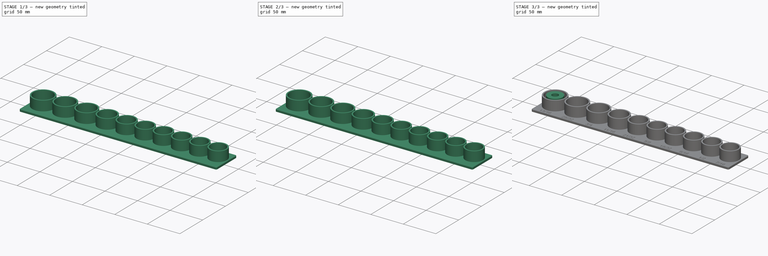
[diagram: build sequence overview — one tinted view per stage of 3, left to right]
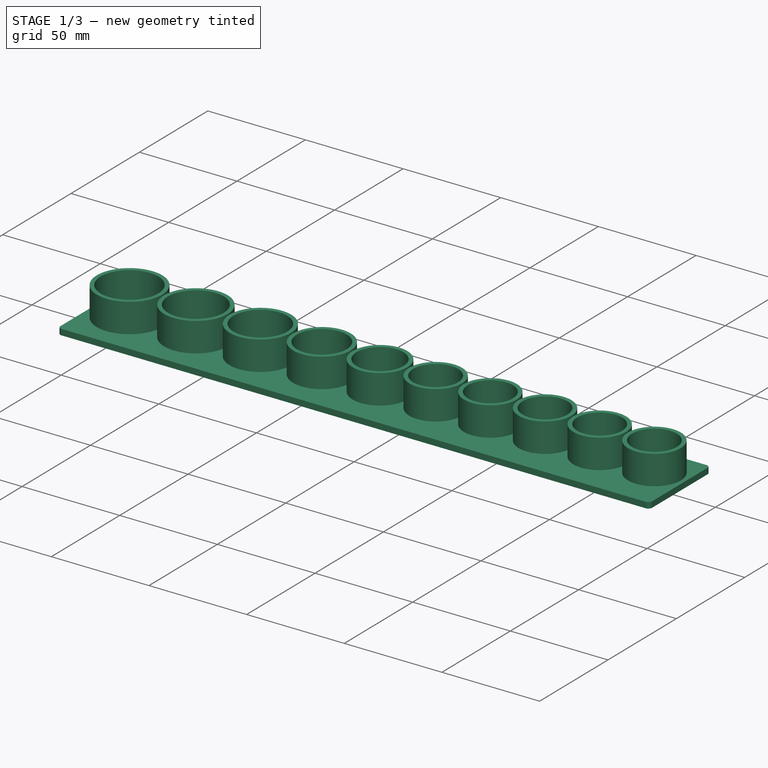
[diagram: stage 1 of 3 — iso view after this stage's code; geometry added in this stage tinted green]
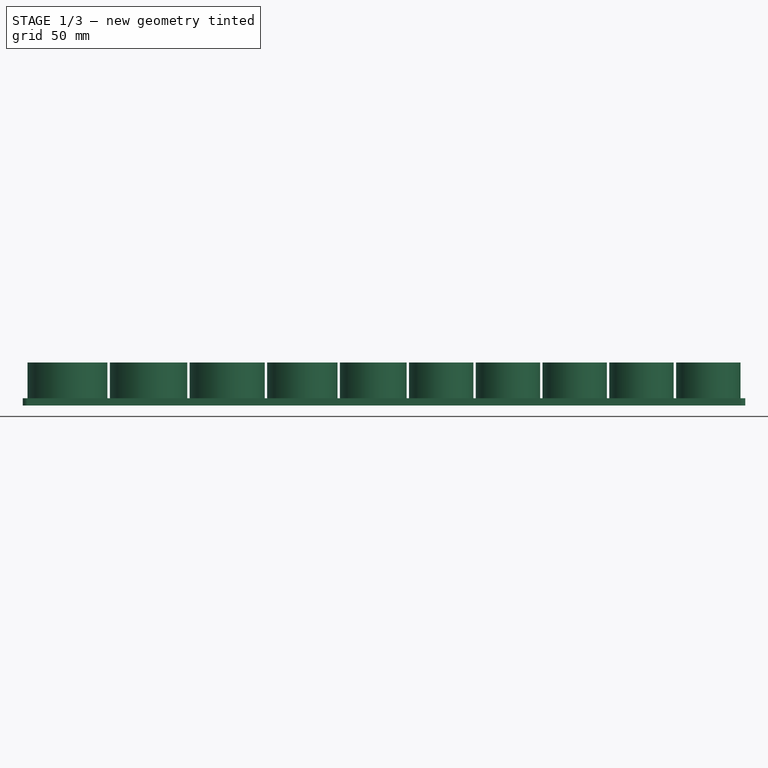
[diagram: stage 1 of 3 — front view after this stage's code; geometry added in this stage tinted green]
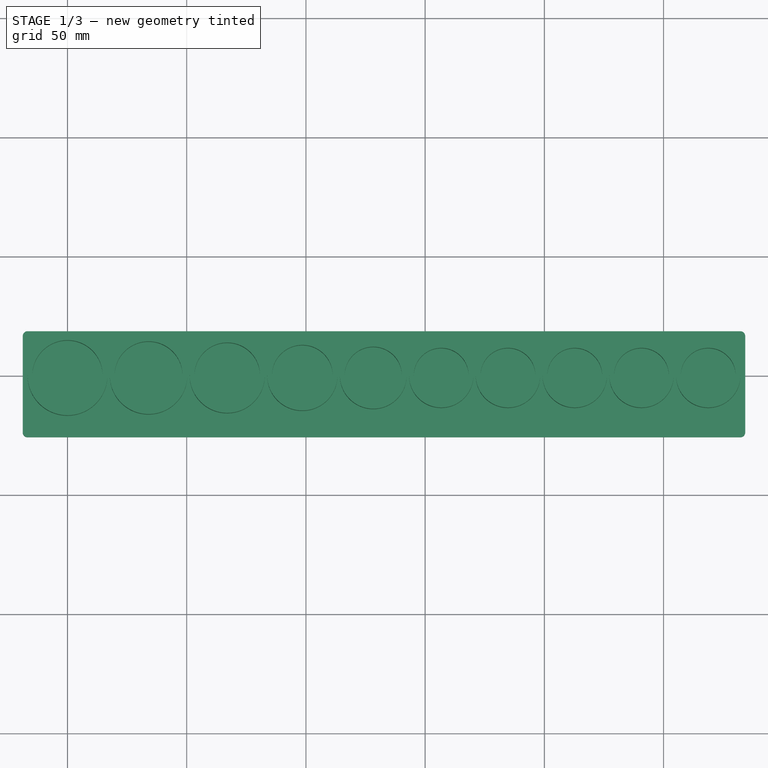
[diagram: stage 1 of 3 — top view after this stage's code; geometry added in this stage tinted green]
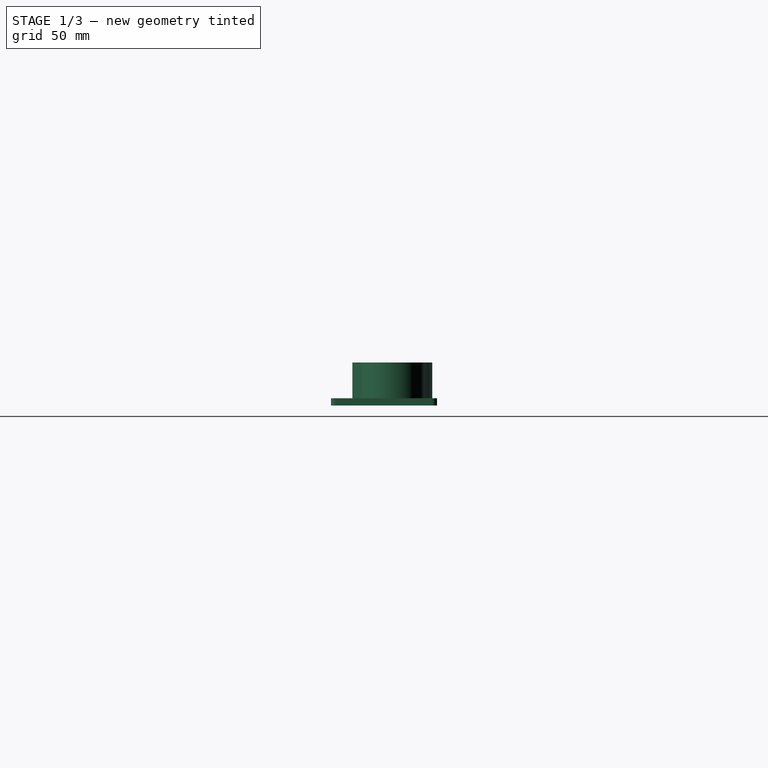
[diagram: stage 1 of 3 — right view after this stage's code; geometry added in this stage tinted green]
FCSTD DOCUMENT  (FreeCAD 0.22R38314 (Git))
Label: new socket
License: All rights reserved
LicenseURL: http://en.wikipedia.org/wiki/All_rights_reserved
objects: Part::Extrusion×4, Sketcher::SketchObject×2, Part::FeaturePython×2, Spreadsheet::Sheet×1, Part::Part2DObjectPython×1, Part::MultiFuse×1, Part::Cut×1
note: 11 computed .brp shape members not serialized (recipe doc carries the construction recipe); baked Part::Feature solids carry a one-line shape summary decoded from their .brp

FEATURE [Part::Extrusion] Extrude003
  Base = -> Sketch001
  Dir = (0,0,1)
  DirMode = 2
  FaceMakerClass = Part::FaceMakerBullseye
  FaceMakerMode = 3
  LengthFwd = 3
  LengthRev = 0
  Reversed = true
  Solid = true
  Symmetric = false
  expr: LengthFwd = <<q>>.base_thickness
FEATURE [Part::Extrusion] Extrude004
  Base = -> ParaSeries
  Dir = (0,0,1)
  DirMode = 2
  FaceMakerClass = Part::FaceMakerBullseye
  FaceMakerMode = 3
  LengthFwd = 15
  LengthRev = 0
  Solid = true
  Symmetric = false
  expr: LengthFwd = <<q>>.socket_height
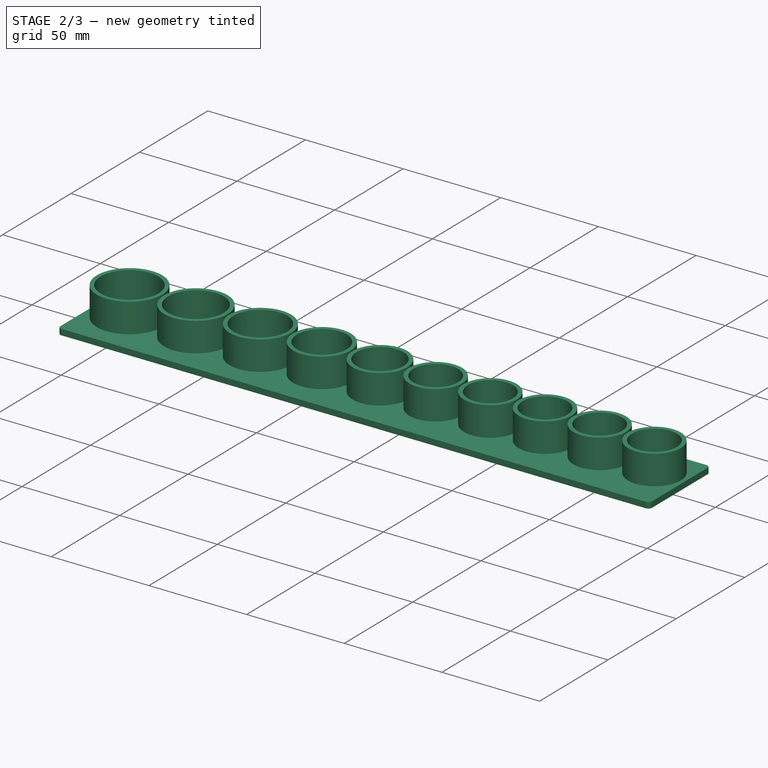
[diagram: stage 2 of 3 — iso view after this stage's code; geometry added in this stage tinted green]
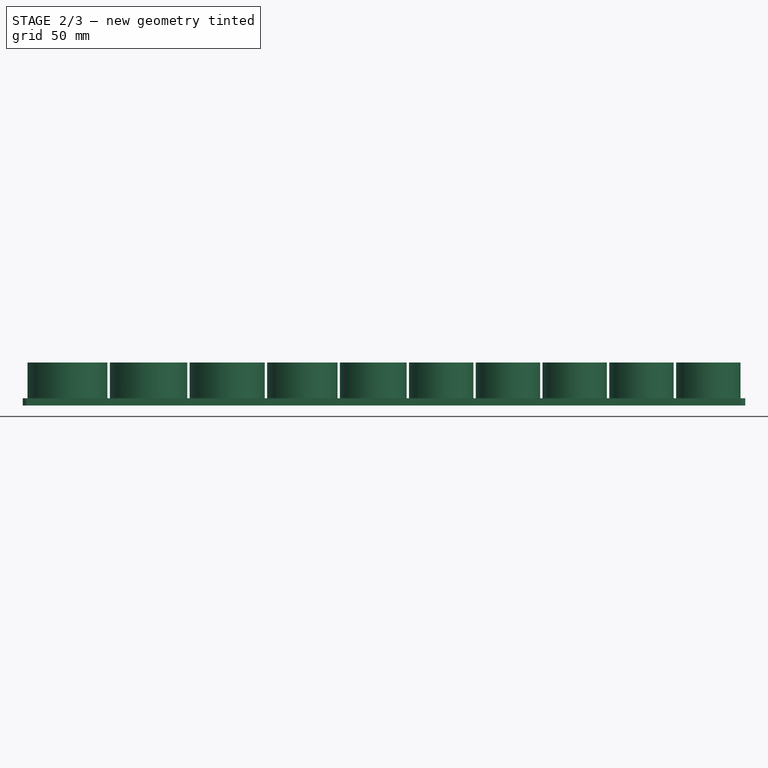
[diagram: stage 2 of 3 — front view after this stage's code; geometry added in this stage tinted green]
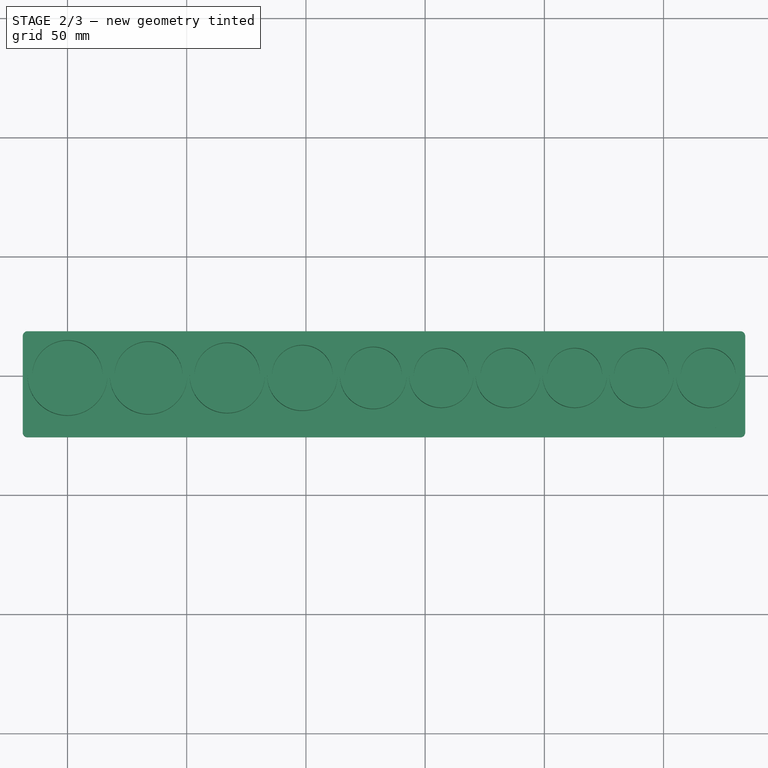
[diagram: stage 2 of 3 — top view after this stage's code; geometry added in this stage tinted green]
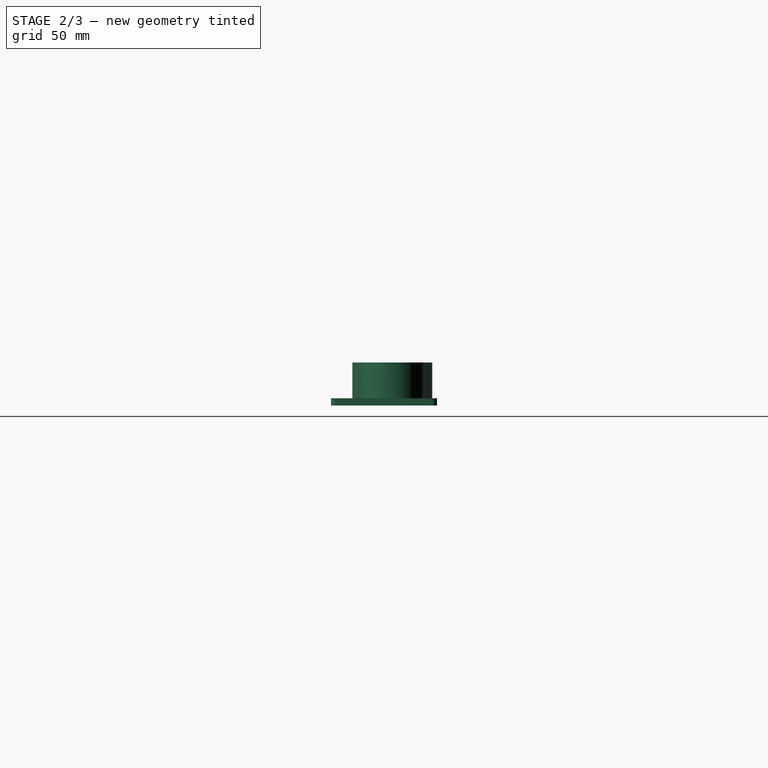
[diagram: stage 2 of 3 — right view after this stage's code; geometry added in this stage tinted green]
FEATURE [Sketcher::SketchObject] Sketch001
  FullyConstrained = true
  expr: Constraints[27] = <<q>>.base_corner_radius
  expr: Constraints[4] = <<q>>.base_left_xy
  expr: Constraints[5] = <<q>>.base_left_xy
  expr: Constraints[6] = <<q>>.base_height
  expr: Constraints[7] = <<q>>.base_length
  sketch-geometry (12):
    g0: LineSegment StartX=-18.75 StartY=16.75 StartZ=0 EndX=-18.75 EndY=-23.75 EndZ=0
    g1: LineSegment StartX=-16.75 StartY=-25.75 StartZ=0 EndX=282.25 EndY=-25.75 EndZ=0
    g2: LineSegment StartX=284.25 StartY=-23.75 StartZ=0 EndX=284.25 EndY=16.75 EndZ=0
    g3: LineSegment StartX=282.25 StartY=18.75 StartZ=0 EndX=-16.75 EndY=18.75 EndZ=0
    g4: ArcOfCircle CenterX=-16.75 CenterY=16.75 CenterZ=0 NormalX=0 NormalY=0 NormalZ=1 AngleXU=0 Radius=2 StartAngle=1.5708 EndAngle=3.14159
    g5: GeomPoint X=-18.75 Y=18.75 Z=0
    g6: ArcOfCircle CenterX=-16.75 CenterY=-23.75 CenterZ=0 NormalX=0 NormalY=0 NormalZ=1 AngleXU=0 Radius=2 StartAngle=3.14159 EndAngle=4.71239
    g7: GeomPoint X=-18.75 Y=-25.75 Z=0
    g8: ArcOfCircle CenterX=282.25 CenterY=-23.75 CenterZ=0 NormalX=0 NormalY=0 NormalZ=1 AngleXU=0 Radius=2 StartAngle=4.71239 EndAngle=6.28319
    g9: GeomPoint X=284.25 Y=-25.75 Z=0
    g10: ArcOfCircle CenterX=282.25 CenterY=16.75 CenterZ=0 NormalX=0 NormalY=0 NormalZ=1 AngleXU=0 Radius=2 StartAngle=-1.5037e-12 EndAngle=1.5708
    g11: GeomPoint X=284.25 Y=18.75 Z=0
  constraints (28):
    c: Vertical(g0)
    c: Vertical(g2)
    c: Horizontal(g1)
    c: Horizontal(g3)
    c: DistanceX(g5,g-1) = 18.75
    c: DistanceY(g-1,g5) = 18.75
    c: DistanceY(g7,g5) = 44.5
    c: DistanceX(g7,g9) = 303
    c: PointOnObject(g5,g3)
    c: PointOnObject(g5,g0)
    c: Tangent(g3,g4) = -1.5708
    c: Tangent(g0,g4) = -1.5708
    c: PointOnObject(g7,g0)
    c: PointOnObject(g7,g1)
    c: Tangent(g0,g6) = -1.5708
    c: Tangent(g1,g6) = -1.5708
    c: PointOnObject(g9,g1)
    c: PointOnObject(g9,g2)
    c: Tangent(g1,g8) = -1.5708
    c: Tangent(g2,g8) = -1.5708
    c: PointOnObject(g11,g2)
    c: PointOnObject(g11,g3)
    c: Tangent(g2,g10) = -1.5708
    c: Tangent(g3,g10) = -1.5708
    c: Equal(g4,g6)
    c: Equal(g4,g8)
    c: Equal(g4,g10)
    c: Radius(g4) = 2
FEATURE [Part::Part2DObjectPython] ShapeString  # Draft 2D object (typed FeaturePython)
  FontFile = /System/Library/Fonts/Supplemental/Arial.ttf
  Fuse = false
  Justification = 1
  JustificationReference = 0
  KeepLeftMargin = false
  MakeFace = true
  ObliqueAngle = 0
  Placement = pos=(0,-18.75,0) rot=(0,0,1;0rad)
  ScaleToSize = true
  Size = 5
  String = 1-1/4
  Tracking = 0
  expr: .Placement.Base.y = <<q>>.text_y_offset
  expr: Size = <<q>>.text_height
FEATURE [Part::Extrusion] Extrude002
  Base = -> ShapeString
  Dir = (0,0,1)
  DirMode = 2
  FaceMakerClass = Part::FaceMakerBullseye
  FaceMakerMode = 3
  LengthFwd = 0.5
  LengthRev = 0
  Reversed = true
  Solid = false
  Symmetric = false
  expr: LengthFwd = <<q>>.text_depth
FEATURE [Part::FeaturePython] ParaSeries001  # WARN: FeaturePython — macro-defined, semantics opaque (R4)
  Alignment = 0
  CellStart = E2
  Count = 7
  DistributionLaw = 0
  EndInclusive = true
  ExposePlacement = false
  GeneratorMode = 0
  MarkerShape = 1
  MarkerSize = 0
  NumElements = 0
  Object = -> Extrude002
  ParameterRef = ShapeString.Placement.Base.x;ShapeString.String
  ParameterType = 2
  Recomputing = 0
  SpanEnd = 7
  SpanStart = 1
  SpreadsheetLink = -> Spreadsheet
  Step = 1
  Type = lattice2ParaSeries.LatticeParaSeries
  VSGVersion = 1
  Values = 0;13/16 | 34;25/32 | 67;3/4 | 98.5;11/16 | 128.25;21/32 | 156.75;5/8 | 184.75;19/32 | 212.75;9/16 | 240.75;1/2 | 268.75;7/16
  ValuesSource = 1
  isLattice = 0
FEATURE [Part::MultiFuse] Fusion
  Shapes = -> [Extrude004,Extrude003]
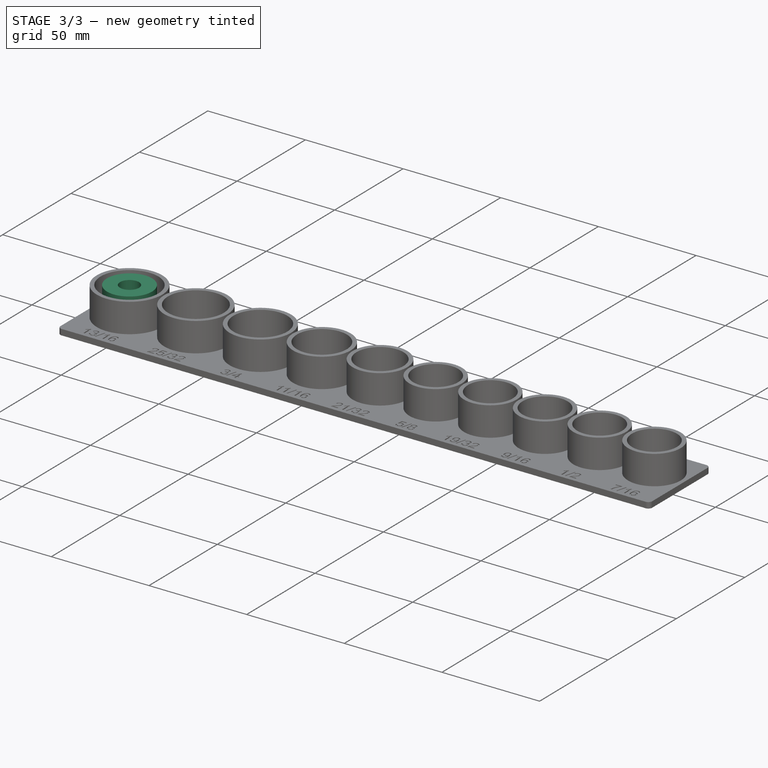
[diagram: stage 3 of 3 — iso view after this stage's code; geometry added in this stage tinted green]
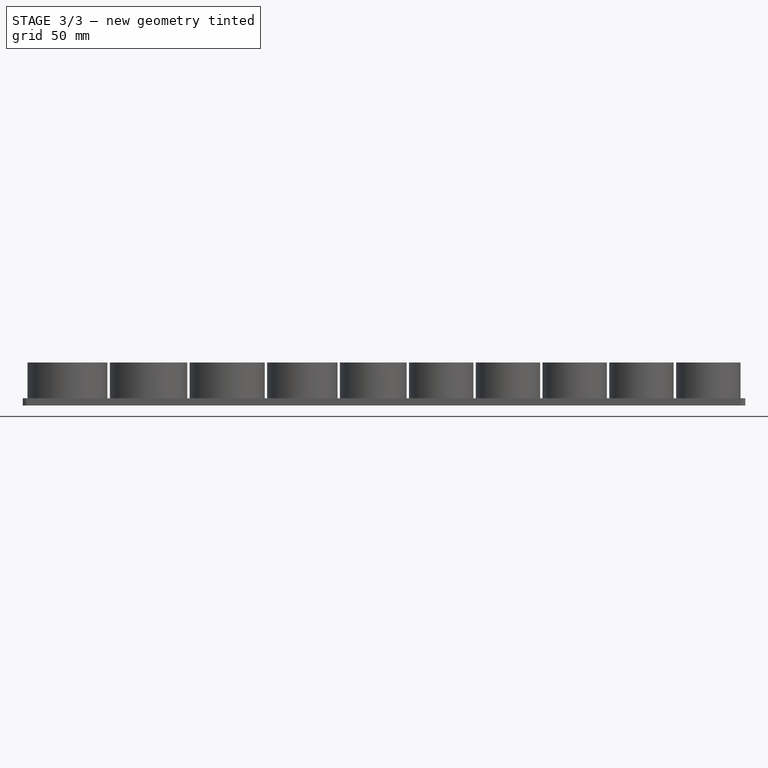
[diagram: stage 3 of 3 — front view after this stage's code; geometry added in this stage tinted green]
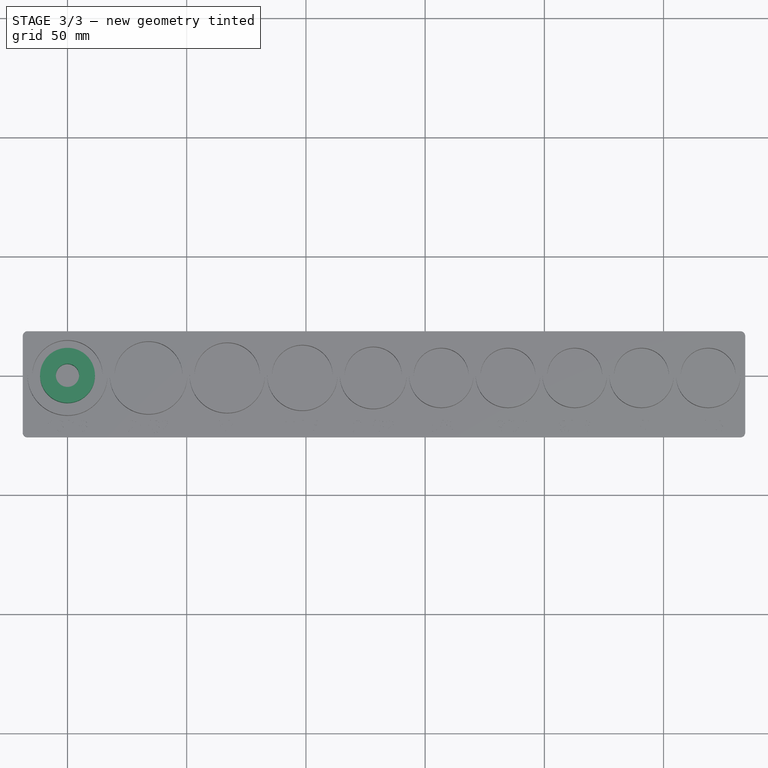
[diagram: stage 3 of 3 — top view after this stage's code; geometry added in this stage tinted green]
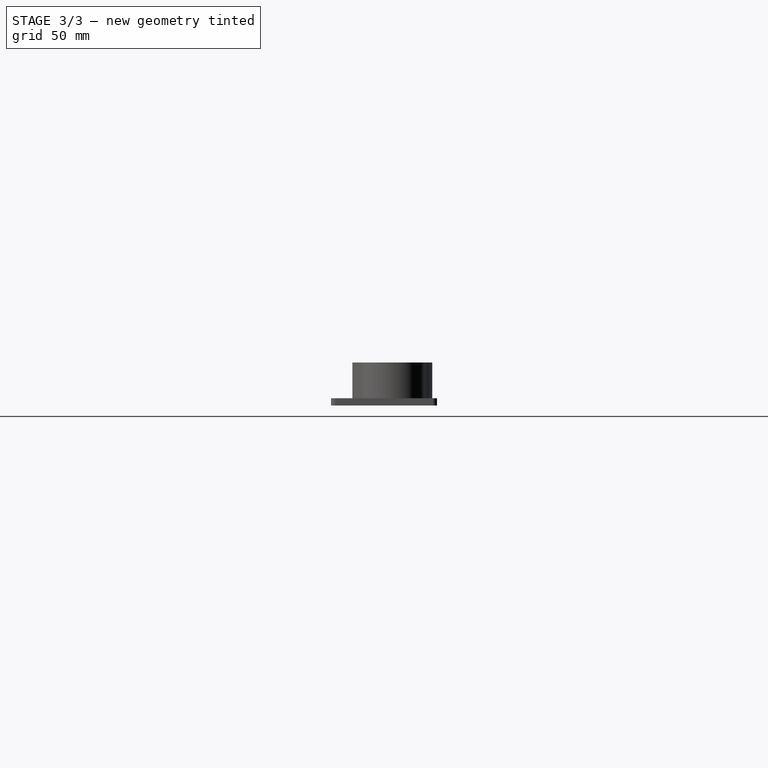
[diagram: stage 3 of 3 — right view after this stage's code; geometry added in this stage tinted green]
FEATURE [Spreadsheet::Sheet] Spreadsheet  label="q"
  cells = A1='socket diameter; B1='socket text; D1='socket para data; E1='text para data; G1='id; H1='od; I1='offset; A2=28.5; B2='13/16; D2==<<%s;>> % I2 + <<%s;>> % G2 + <<%s>> % H2; E2==<<%s;>> % I2 + <<%s>> % B2; G2==A2 + socket_padding; H2==G2 + 2 * socket_wall; I2=0; M2='socket wall; N2(socket_wall)=2; A3=27.5; B3='25/32; D3==<<%s;>> % I3 + <<%s;>> % G3 + <<%s>> % H3; E3==<<%s;>> % I3 + <<%s>> % B3; G3==A3 + socket_padding; H3==G3 + 2 * socket_wall; I3==H2 / 2 + H3 / 2 + socket_spacing + I2; M3='socket height; N3(socket_height)=15; A4=26.5; B4='3/4; D4==<<%s;>> % I4 + <<%s;>> % G4 + <<%s>> % H4; E4==<<%s;>> % I4 + <<%s>> % B4; G4==A4 + socket_padding; H4==G4 + 2 * socket_wall; I4==H3 / 2 + H4 / 2 + socket_spacing + I3; M4='socket padding; N4(socket_padding)=1; A5=24.5; B5='11/16; D5==<<%s;>> % I5 + <<%s;>> % G5 + <<%s>> % H5; E5==<<%s;>> % I5 + <<%s>> % B5; G5==A5 + socket_padding; H5==G5 + 2 * socket_wall; I5==H4 / 2 + H5 / 2 + socket_spacing + I4; M5='socket spacing; N5(socket_spacing)=1; A6=23; B6='21/32; D6==<<%s;>> % I6 + <<%s;>> % G6 + <<%s>> % H6; E6==<<%s;>> % I6 + <<%s>> % B6; G6==A6 + socket_padding; H6==G6 + 2 * socket_wall; I6==H5 / 2 + H6 / 2 + socket_spacing + I5; A7=22; B7='5/8; D7==<<%s;>> % I7 + <<%s;>> % G7 + <<%s>> % H7; E7==<<%s;>> % I7 + <<%s>> % B7; G7==A7 + socket_padding; H7==G7 + 2 * socket_wall; I7==H6 / 2 + H7 / 2 + socket_spacing + I6; M7='base spacing; N7(base_spacing)=2; A8=22; B8='19/32; D8==<<%s;>> % I8 + <<%s;>> % G8 + <<%s>> % H8; E8==<<%s;>> % I8 + <<%s>> % B8; G8==A8 + socket_padding; H8==G8 + 2 * socket_wall; I8==H7 / 2 + H8 / 2 + socket_spacing + I7; M8='items; N8(items)==count(A2:A30); A9=22; B9='9/16; D9==<<%s;>> % I9 + <<%s;>> % G9 + <<%s>> % H9; E9==<<%s;>> % I9 + <<%s>> % B9; G9==A9 + socket_padding; H9==G9 + 2 * socket_wall; I9==H8 / 2 + H9 / 2 + socket_spacing + I8; M9='base length; N9(base_length)==sum(H2:H30) + (items - 1) * socket_spacing + 2 * base_spacing; A10=22; B10='1/2; D10==<<%s;>> % I10 + <<%s;>> % G10 + <<%s>> % H10; E10==<<%s;>> % I10 + <<%s>> % B10; G10==A10 + socket_padding; H10==G10 + 2 * socket_wall; I10==H9 / 2 + H10 / 2 + socket_spacing + I9; M10='base height; N10(base_height)==max(H2:H30) + 3 * base_spacing + text_height; A11=22; B11='7/16; D11==<<%s;>> % I11 + <<%s;>> % G11 + <<%s>> % H11; E11==<<%s;>> % I11 + <<%s>> % B11; G11==A11 + socket_padding; H11==G11 + 2 * socket_wall; I11==H10 / 2 + H11 / 2 + socket_spacing + I10; M11='text height; N11(text_height)=5; M12='base left xy; N12(base_left_xy)==max(H2:H30) / 2 + base_spacing; M13='base corner radius; N13(base_corner_radius)=2; M14='base thickness; N14(base_thickness)=3; M15='text y offset; N15(text_y_offset)==-(max(H2:H30) / 2 + base_spacing); M16='text depth; N16(text_depth)=0.5
FEATURE [Sketcher::SketchObject] Sketch
  FullyConstrained = true
  sketch-geometry (2):
    g0: Circle CenterX=0 CenterY=0 CenterZ=0 NormalX=0 NormalY=0 NormalZ=1 AngleXU=0 Radius=4.875
    g1: Circle CenterX=0 CenterY=0 CenterZ=0 NormalX=0 NormalY=0 NormalZ=1 AngleXU=0 Radius=11.515
  constraints (4):
    c: Coincident(g0,g-1)
    c: Diameter(g0) = 9.75  'ID'
    c: Coincident(g1,g0)
    c: Diameter(g1) = 23.03  'OD'
FEATURE [Part::FeaturePython] ParaSeries  # WARN: FeaturePython — macro-defined, semantics opaque (R4)
  Alignment = 0
  CellStart = D2
  Count = 7
  DistributionLaw = 0
  EndInclusive = true
  ExposePlacement = false
  GeneratorMode = 0
  MarkerShape = 1
  MarkerSize = 0
  NumElements = 0
  Object = -> Sketch
  ParameterRef = Sketch.Placement.Base.x;Sketch.Constraints.ID;Sketch.Constraints.OD
  ParameterType = 0
  Recomputing = 0
  SpanEnd = 7
  SpanStart = 1
  SpreadsheetLink = -> Spreadsheet
  Step = 1
  Type = lattice2ParaSeries.LatticeParaSeries
  VSGVersion = 1
  Values = 0;29.5;33.5 | 34;28.5;32.5 | 67;27.5;31.5 | 98.5;25.5;29.5 | 128.25;24;28 | 156.75;23;27 | 184.75;23;27 | 212.75;23;27 | 240.75;23;27 | 268.75;23;27
  ValuesSource = 1
  isLattice = 0
FEATURE [Part::Extrusion] Extrude
  Base = -> Sketch
  Dir = (0,0,1)
  DirMode = 2
  FaceMakerClass = Part::FaceMakerBullseye
  FaceMakerMode = 3
  LengthFwd = 15
  LengthRev = 0
  Solid = true
  Symmetric = false
  expr: LengthFwd = <<q>>.socket_height
FEATURE [Part::Cut] Cut
  Base = -> Fusion
  Tool = -> ParaSeries001
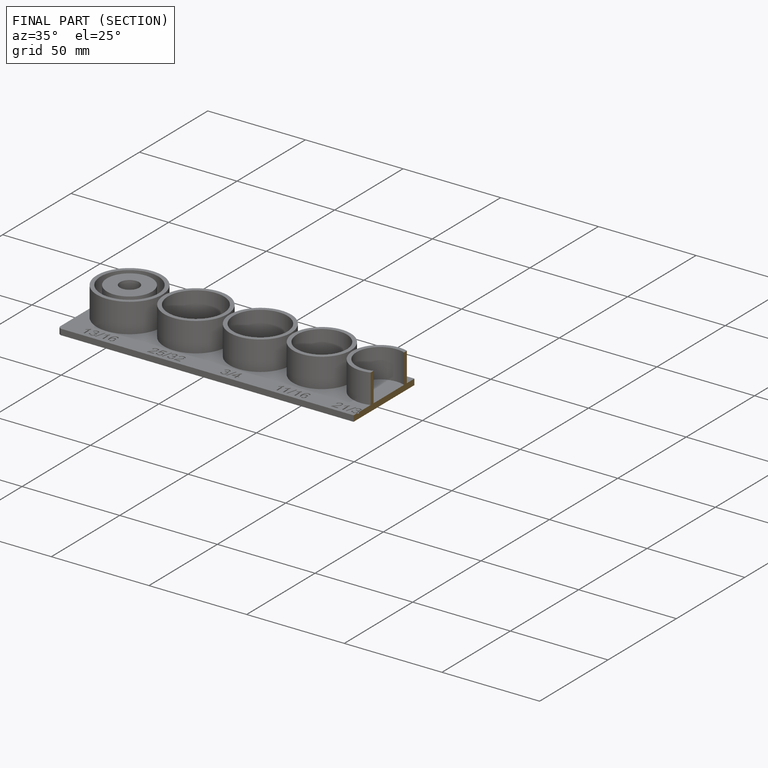
[diagram: finished part — half-section view (interior)]
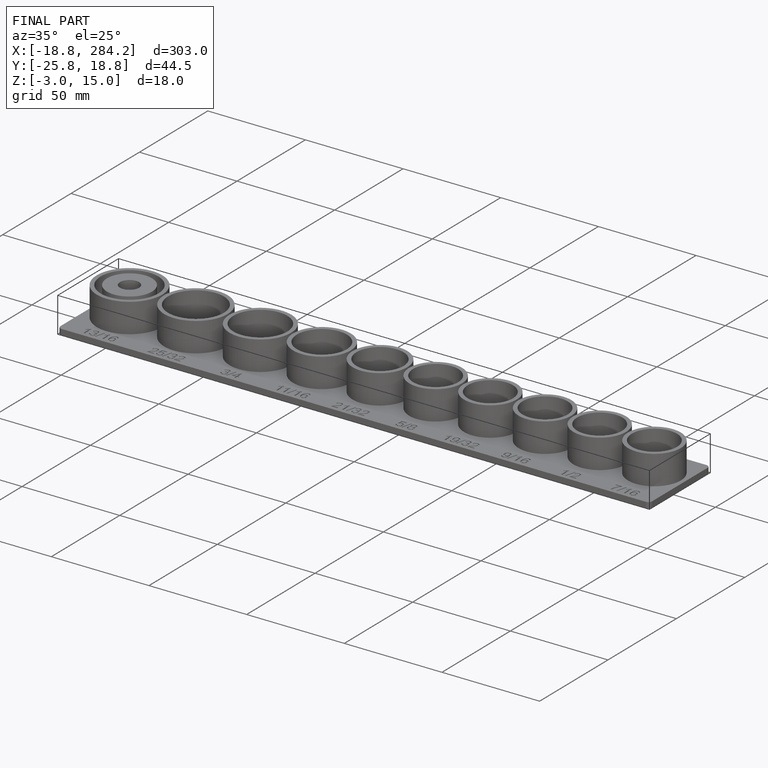
[diagram: finished part — iso view with bounding-box wireframe]
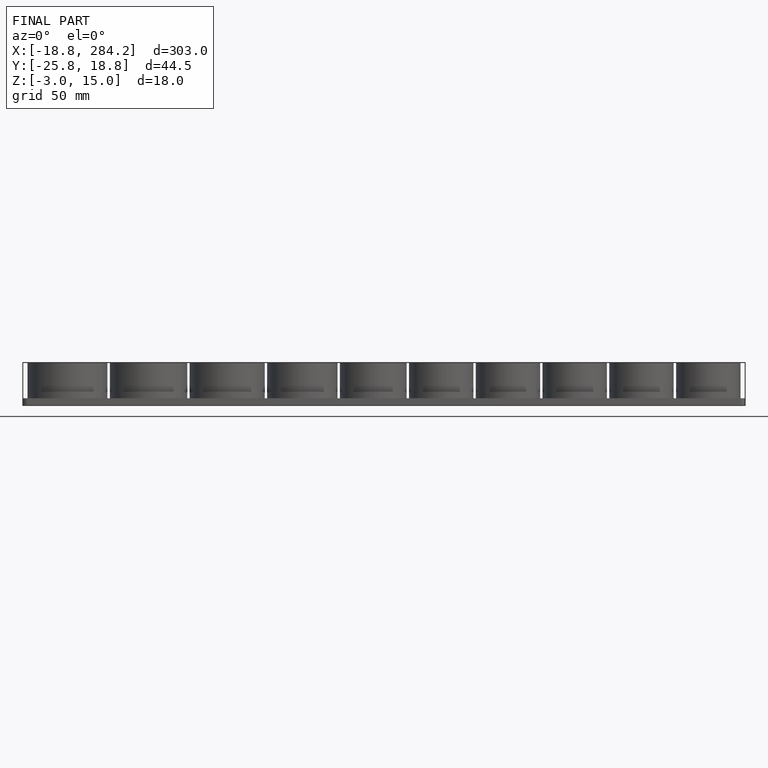
[diagram: finished part — front view with bounding-box wireframe]
